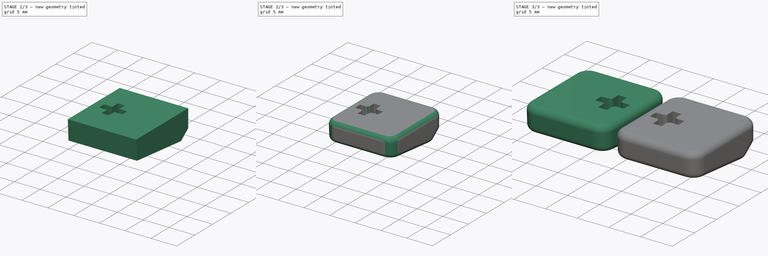
[diagram: build sequence overview — one tinted view per stage of 3, left to right]
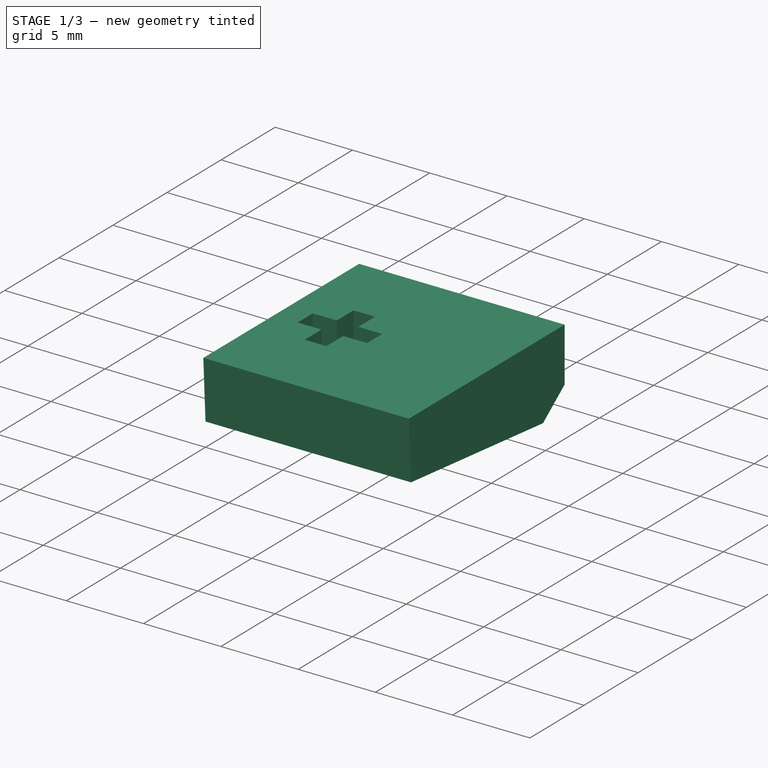
[diagram: stage 1 of 3 — iso view after this stage's code; geometry added in this stage tinted green]
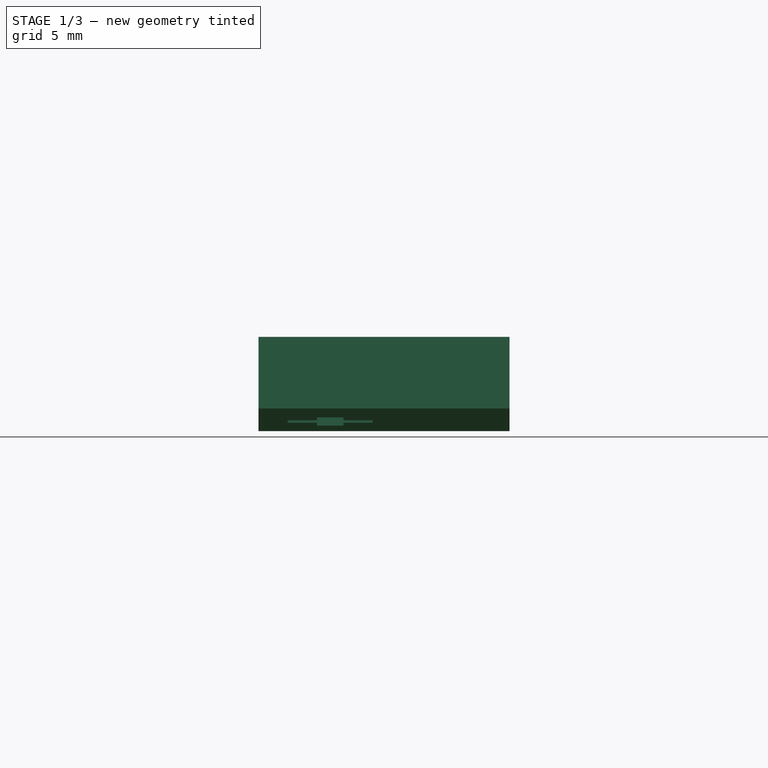
[diagram: stage 1 of 3 — front view after this stage's code; geometry added in this stage tinted green]
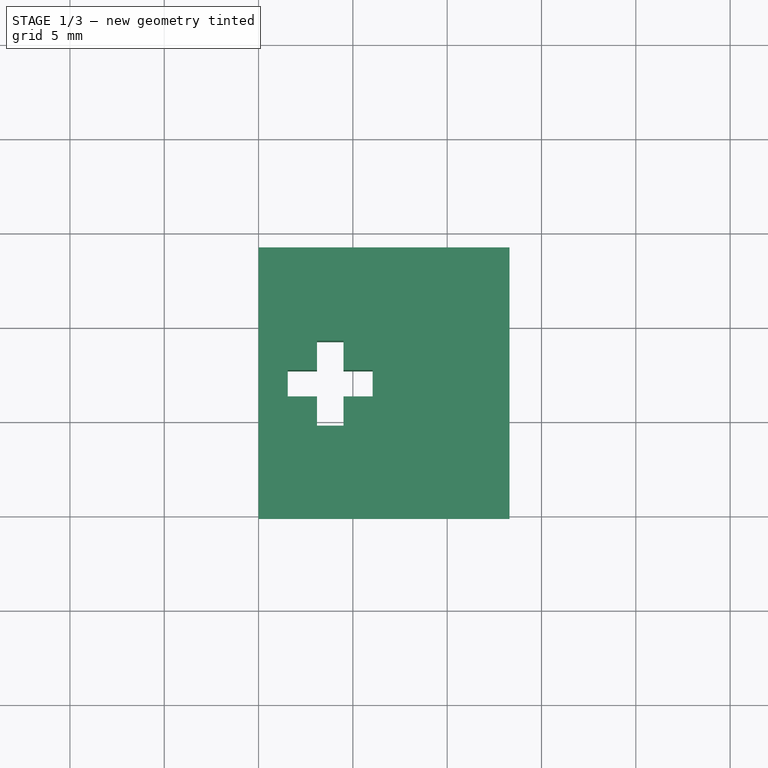
[diagram: stage 1 of 3 — top view after this stage's code; geometry added in this stage tinted green]
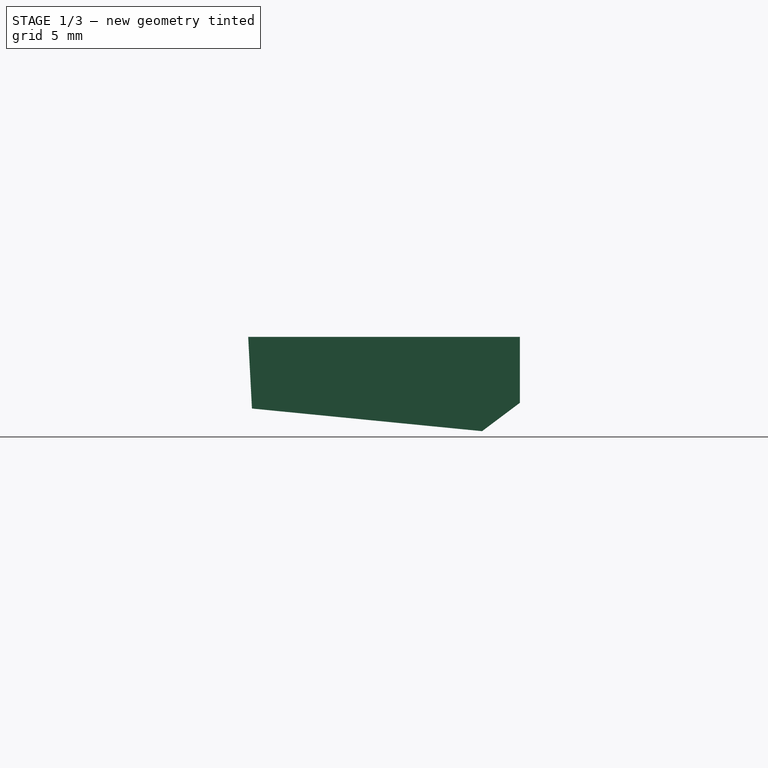
[diagram: stage 1 of 3 — right view after this stage's code; geometry added in this stage tinted green]
FCSTD DOCUMENT  (FreeCAD 0.21R33771 (Git))
Label: XL-Alps-Space-Bar-Stabilizer-Adapters
License: All rights reserved
LicenseURL: http://en.wikipedia.org/wiki/All_rights_reserved
objects: PartDesign::Fillet×3, Sketcher::SketchObject×2, PartDesign::Pad×1, PartDesign::Pocket×1, PartDesign::Body×1, Part::FeaturePython×1, Part::Compound×1
note: 15 computed .brp shape members not serialized (recipe doc carries the construction recipe); baked Part::Feature solids carry a one-line shape summary decoded from their .brp

FEATURE [Sketcher::SketchObject] Sketch
  FullyConstrained = true
  MapMode = 5
  Placement = pos=(0,0,0) rot=(0.57735,0.57735,0.57735;2.0944rad)
  Support = -> [YZ_Plane]
  sketch-geometry (5):
    g0: LineSegment StartX=0 StartY=0 StartZ=0 EndX=12.2 EndY=-1.2 EndZ=0
    g1: LineSegment StartX=12.2 StartY=-1.2 StartZ=0 EndX=14.2 EndY=0.3 EndZ=0
    g2: LineSegment StartX=14.2 StartY=0.3 StartZ=0 EndX=14.2 EndY=3.8 EndZ=0
    g3: LineSegment StartX=14.2 StartY=3.8 StartZ=0 EndX=-0.2 EndY=3.8 EndZ=0
    g4: LineSegment StartX=-0.2 StartY=3.8 StartZ=0 EndX=0 EndY=0 EndZ=0
  constraints (14):
    c: Coincident(g-1,g0)
    c: Coincident(g0,g1)
    c: Coincident(g1,g2)
    c: Vertical(g2)
    c: Coincident(g2,g3)
    c: Horizontal(g3)
    c: Coincident(g3,g4)
    c: Coincident(g4,g0)
    c: DistanceX(g0,g0) = 12.2
    c: DistanceY(g0,g2) = 5
    c: DistanceY(g2,g2) = 3.5
    c: DistanceY(g0,g3) = 3.8
    c: DistanceX(g3,g2) = 14.4
    c: DistanceX(g0,g1) = 2
FEATURE [PartDesign::Pad] Pad
  Direction = (1,-2e-16,3e-16)
  Length = 13.3
  Length2 = 10
  Placement = pos=(0,0,0) rot=(1,1,1;2.0944rad)
  Profile = -> Sketch
  ReferenceAxis = -> Sketch [N_Axis]
  Type = 0
FEATURE [Sketcher::SketchObject] Sketch001
  ExternalGeometry = -> [Pad]
  FullyConstrained = true
  MapMode = 5
  Placement = pos=(-1.5e-15,2.1e-15,3.8) rot=(0,0,-1;1.5708rad)
  Support = -> [Pad]
  sketch-geometry (15):
    g0: LineSegment StartX=-7.7 StartY=6.05 StartZ=0 EndX=-6.3 EndY=6.05 EndZ=0
    g1: LineSegment StartX=-6.3 StartY=6.05 StartZ=0 EndX=-6.3 EndY=4.5 EndZ=0
    g2: LineSegment StartX=-6.3 StartY=4.5 StartZ=0 EndX=-4.75 EndY=4.5 EndZ=0
    g3: LineSegment StartX=-4.75 StartY=4.5 StartZ=0 EndX=-4.75 EndY=3.1 EndZ=0
    g4: LineSegment StartX=-4.75 StartY=3.1 StartZ=0 EndX=-6.3 EndY=3.1 EndZ=0
    g5: LineSegment StartX=-6.3 StartY=3.1 StartZ=0 EndX=-6.3 EndY=1.55 EndZ=0
    g6: LineSegment StartX=-6.3 StartY=1.55 StartZ=0 EndX=-7.7 EndY=1.55 EndZ=0
    g7: LineSegment StartX=-7.7 StartY=1.55 StartZ=0 EndX=-7.7 EndY=3.1 EndZ=0
    g8: LineSegment StartX=-7.7 StartY=3.1 StartZ=0 EndX=-9.25 EndY=3.1 EndZ=0
    g9: LineSegment StartX=-9.25 StartY=3.1 StartZ=0 EndX=-9.25 EndY=4.5 EndZ=0
    g10: LineSegment StartX=-9.25 StartY=4.5 StartZ=0 EndX=-7.7 EndY=4.5 EndZ=0
    g11: LineSegment StartX=-7.7 StartY=4.5 StartZ=0 EndX=-7.7 EndY=6.05 EndZ=0
    g12: GeomPoint X=-7 Y=3.8 Z=0
    g13: LineSegment StartX=-7 StartY=3.8 StartZ=0 EndX=0.2 EndY=13.3 EndZ=0
    g14: LineSegment StartX=-7 StartY=3.8 StartZ=0 EndX=-14.2 EndY=13.3 EndZ=0
  constraints (41):
    c: Horizontal(g0)
    c: Coincident(g0,g1)
    c: Vertical(g1)
    c: Coincident(g1,g2)
    c: Horizontal(g2)
    c: Coincident(g2,g3)
    c: Vertical(g3)
    c: Coincident(g3,g4)
    c: Horizontal(g4)
    c: Coincident(g4,g5)
    c: Vertical(g5)
    c: Coincident(g5,g6)
    c: Horizontal(g6)
    c: Coincident(g6,g7)
    c: Vertical(g7)
    c: Coincident(g7,g8)
    c: Horizontal(g8)
    c: Coincident(g8,g9)
    c: Vertical(g9)
    c: Coincident(g9,g10)
    c: Horizontal(g10)
    c: Coincident(g10,g11)
    c: Coincident(g11,g0)
    c: Vertical(g11)
    c: Vertical(g1,g4)
    c: Vertical(g10,g7)
    c: Horizontal(g10,g1)
    c: Horizontal(g7,g4)
    c: Equal(g3,g0)
    c: Equal(g1,g2)
    c: Equal(g10,g11)
    c: Equal(g1,g5)
    c: DistanceX(g0,g0) = 1.4
    c: DistanceX(g8,g3) = 4.5
    c: Symmetric(g7,g1,g12)
    c: Coincident(g13,g12)
    c: Coincident(g13,g-3)
    c: Coincident(g14,g12)
    c: Coincident(g14,g-3)
    c: Equal(g14,g13)
    c: DistanceY(g12,g13) = 9.5
FEATURE [PartDesign::Pocket] Pocket
  BaseFeature = -> Pad
  Direction = (0,0,-1)
  Length = 5
  Length2 = 5
  Placement = pos=(0,0,0) rot=(1,1,1;2.0944rad)
  Profile = -> Sketch001
  ReferenceAxis = -> Sketch001 [N_Axis]
  Type = 1
  UseCustomVector = true
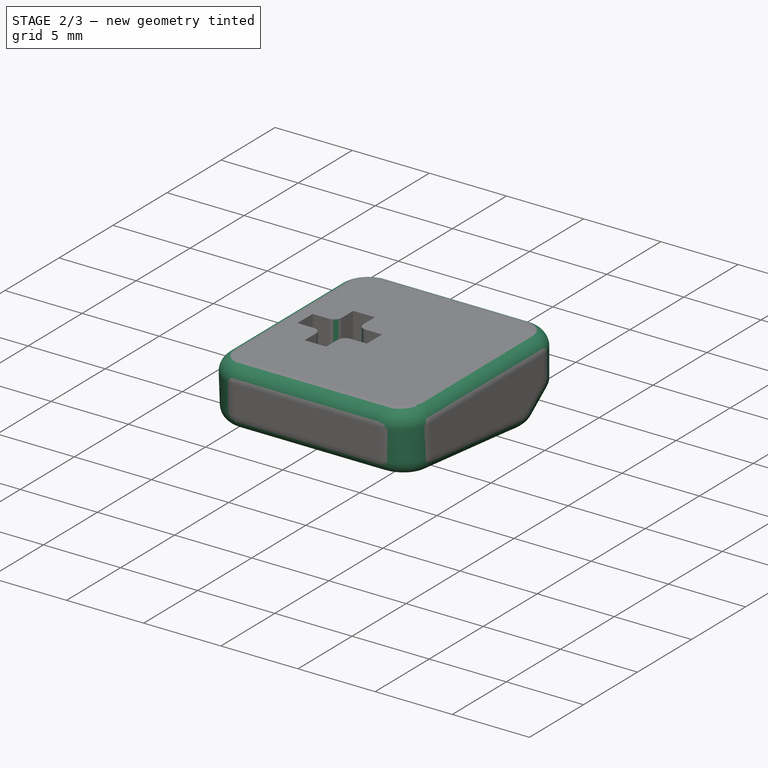
[diagram: stage 2 of 3 — iso view after this stage's code; geometry added in this stage tinted green]
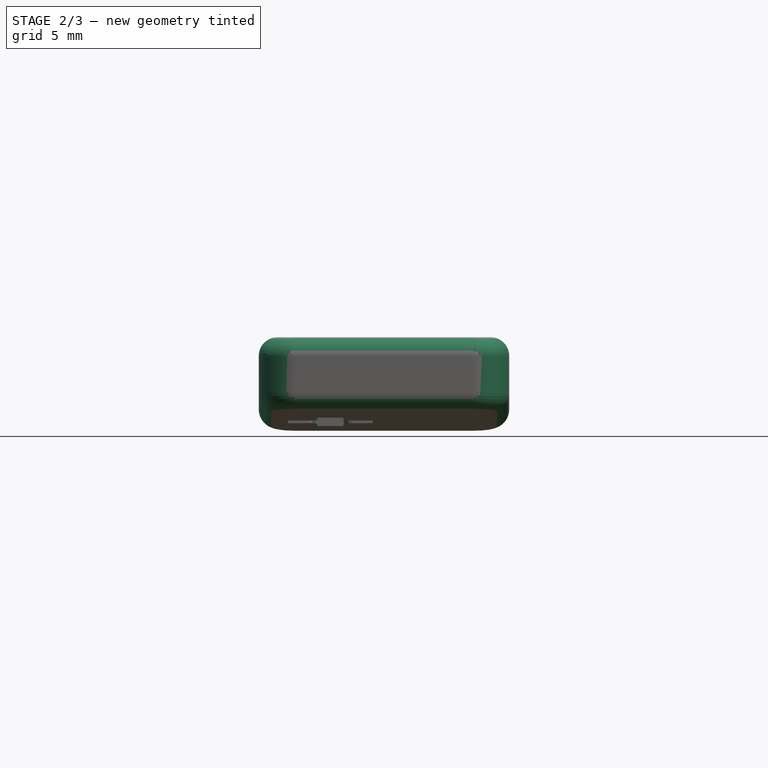
[diagram: stage 2 of 3 — front view after this stage's code; geometry added in this stage tinted green]
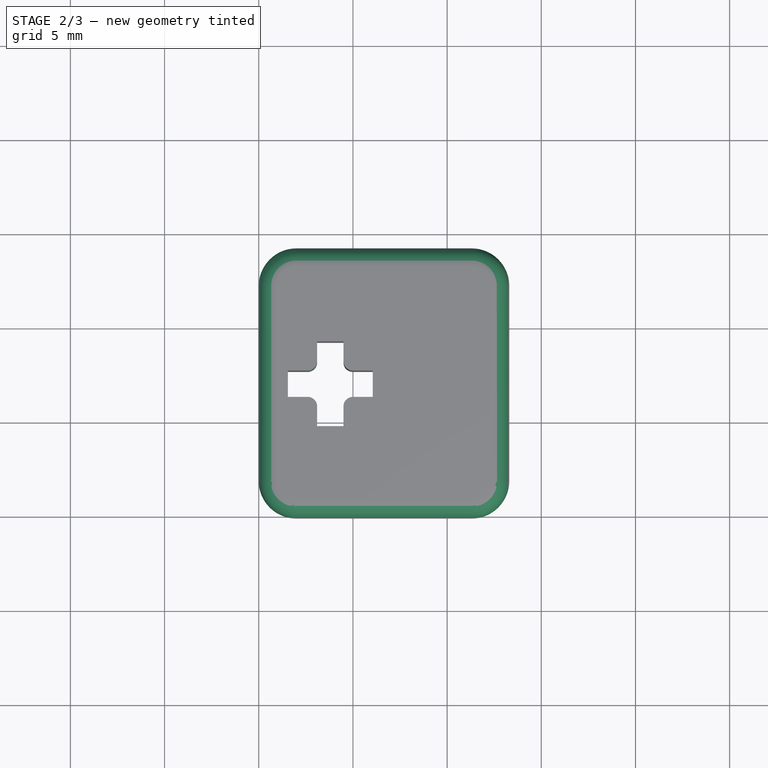
[diagram: stage 2 of 3 — top view after this stage's code; geometry added in this stage tinted green]
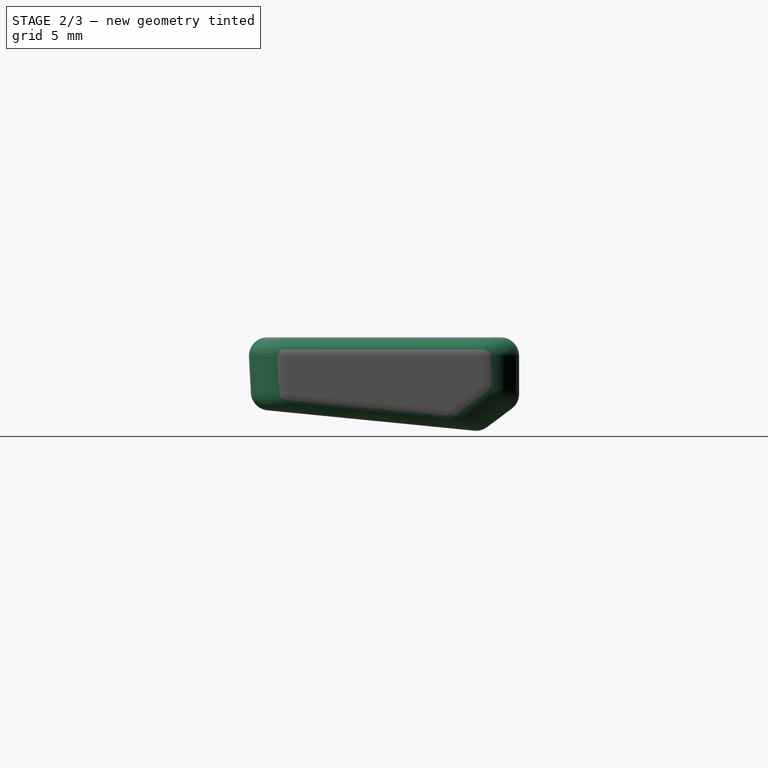
[diagram: stage 2 of 3 — right view after this stage's code; geometry added in this stage tinted green]
FEATURE [PartDesign::Fillet] Fillet
  Base = -> Pocket [Edge35,Edge41,Edge29,Edge47]
  BaseFeature = -> Pocket
  Placement = pos=(0,0,0) rot=(1,1,1;2.0944rad)
  Radius = 0.5
  SupportTransform = false
  UseAllEdges = false
FEATURE [PartDesign::Fillet] Fillet001
  Base = -> Fillet [Edge54,Edge55,Edge60,Edge59,Edge57,Edge56]
  BaseFeature = -> Fillet
  Placement = pos=(0,0,0) rot=(1,1,1;2.0944rad)
  Radius = 2
  SupportTransform = false
  UseAllEdges = false
FEATURE [PartDesign::Fillet] Fillet002
  Base = -> Fillet001 [Edge1,Edge25,Edge42]
  BaseFeature = -> Fillet001
  Placement = pos=(0,0,0) rot=(1,1,1;2.0944rad)
  Radius = 1
  SupportTransform = false
  UseAllEdges = false
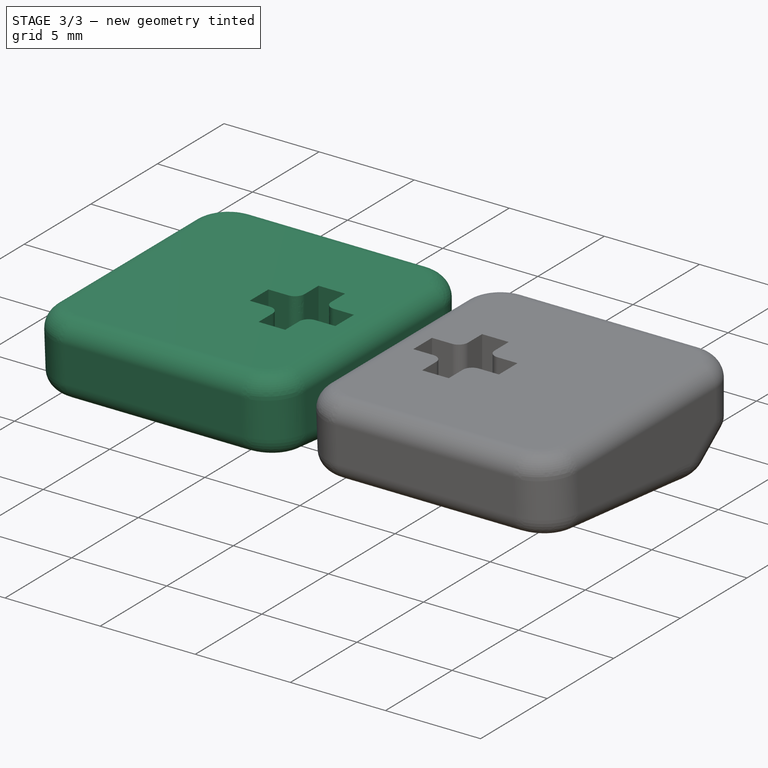
[diagram: stage 3 of 3 — iso view after this stage's code; geometry added in this stage tinted green]
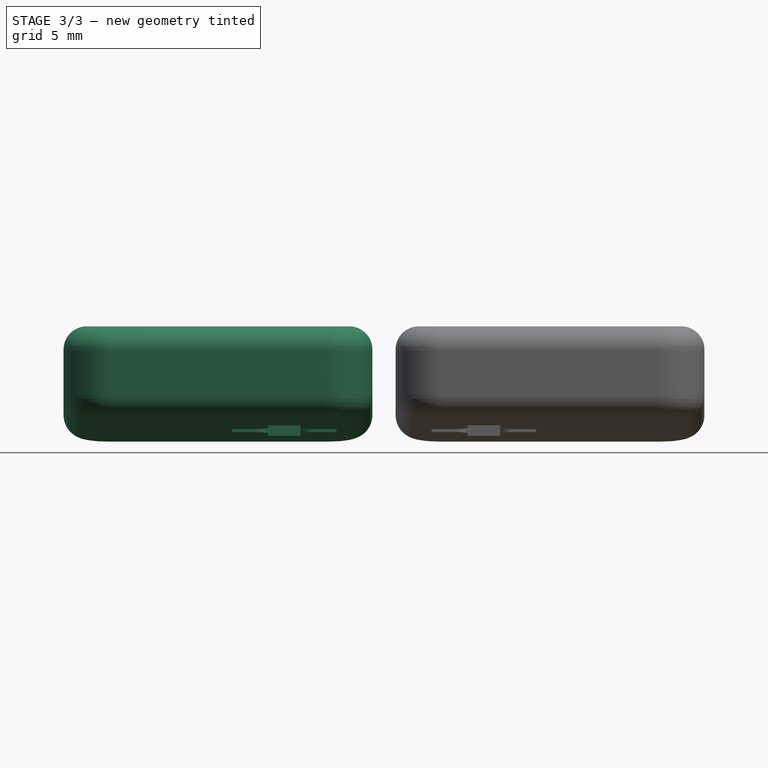
[diagram: stage 3 of 3 — front view after this stage's code; geometry added in this stage tinted green]
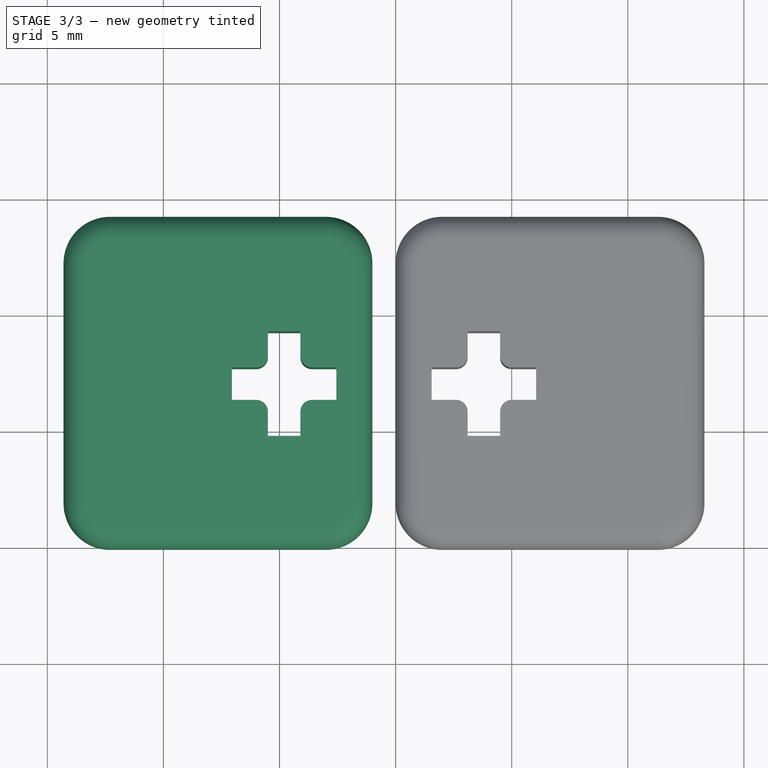
[diagram: stage 3 of 3 — top view after this stage's code; geometry added in this stage tinted green]
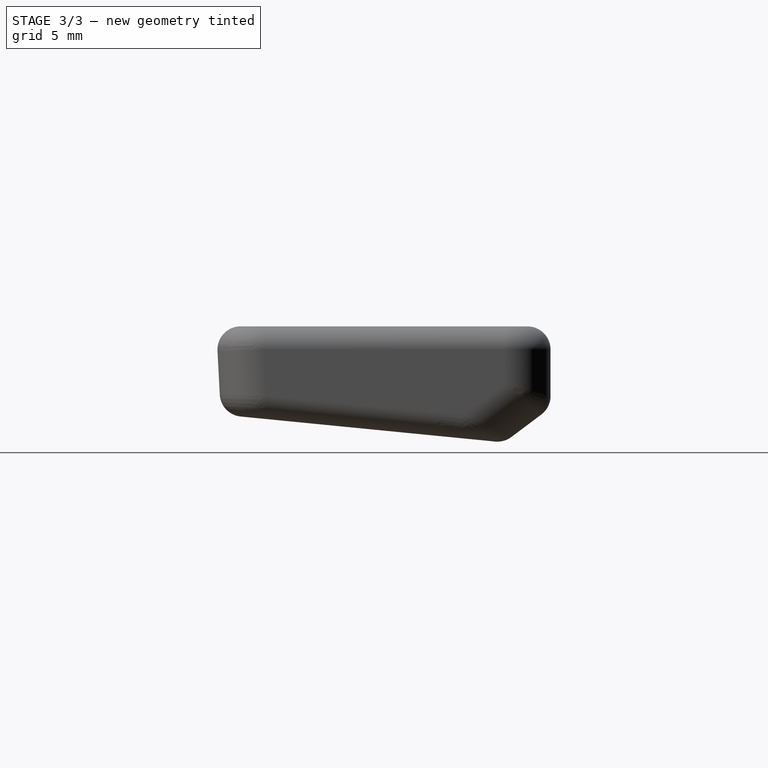
[diagram: stage 3 of 3 — right view after this stage's code; geometry added in this stage tinted green]
FEATURE [PartDesign::Body] Body  label="Body_Left"
  Group = -> [Sketch,Pad,Sketch001,Pocket,Fillet,Fillet001,Fillet002]
  Origin = -> Origin
  Tip = -> Fillet002
FEATURE [Part::FeaturePython] Clone  label="Body_Right"  # Draft clone (typed FeaturePython)
  AttacherType = Attacher::AttachEngine3D
  Fuse = false
  Objects = -> [Body]
  Placement = pos=(-1,0,0) rot=(0,0,1;0rad)
  Scale = (-1,1,1)
FEATURE [Part::Compound] Compound
  Links = -> [Body,Clone]
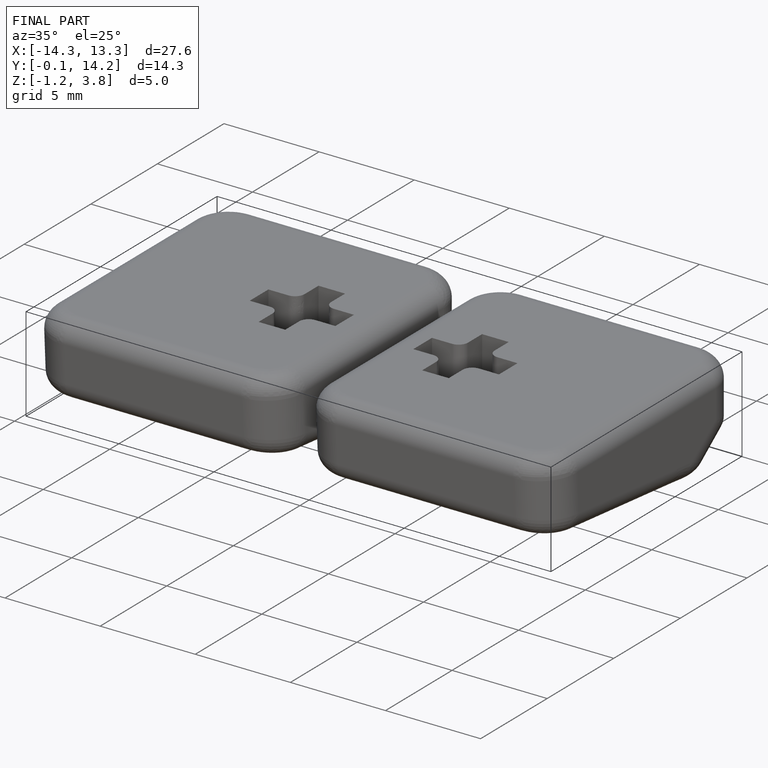
[diagram: finished part — iso view with bounding-box wireframe]
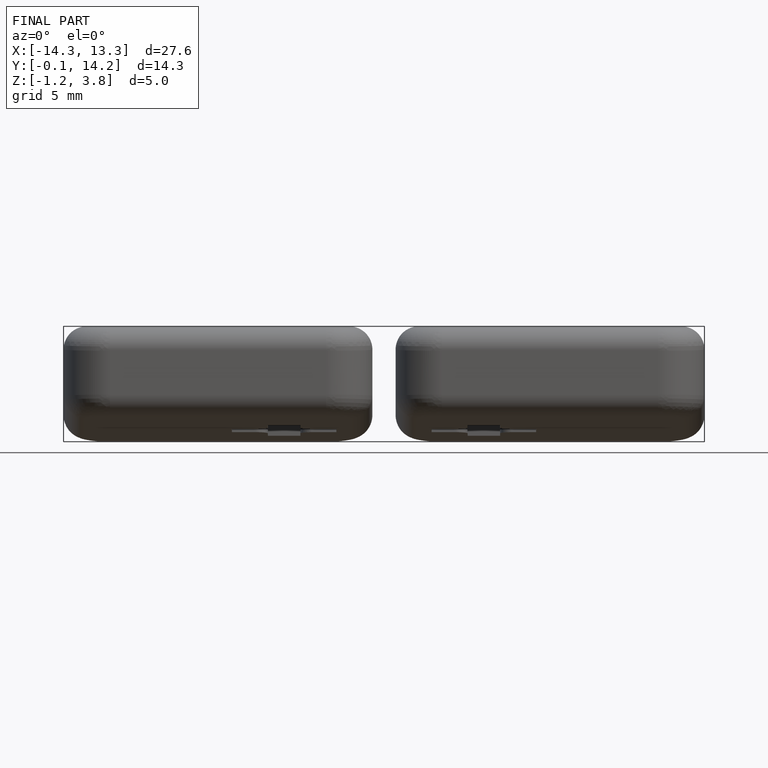
[diagram: finished part — front view with bounding-box wireframe]
